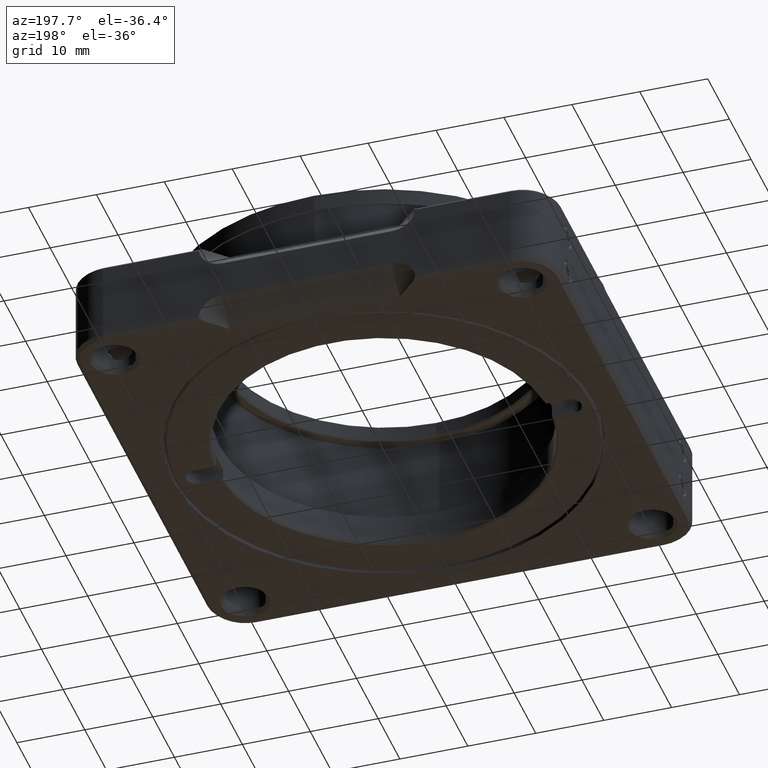
[diagram: clean part render]
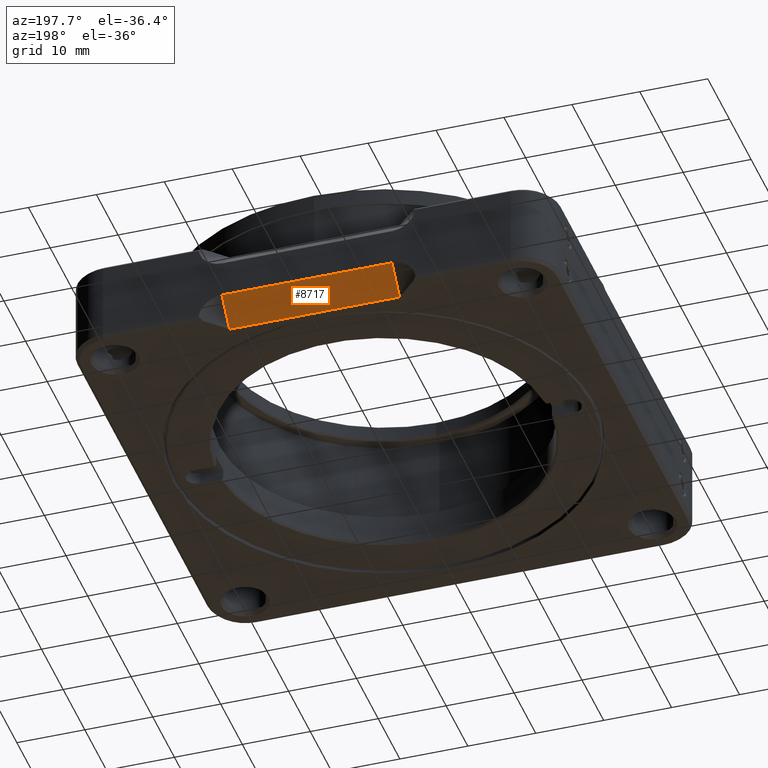
[diagram: same view with one face highlighted and labeled with its STEP entity id]
A machine part, auxiliary view. The second image highlights one B-rep face of the part: STEP entity #8717.
In plain terms, the highlighted planar face has unit normal (0, -0.7071, 0.7071).
Its self-contained STEP definition (entity closure, byte-faithful):
#47 = DIRECTION ( 'NONE',  ( -3.504670666704861723E-16, 0.7071067811865462405, 0.7071067811865489050 ) ) ;
#90 = DIRECTION ( 'NONE',  ( -1.000000000000000000, -0.000000000000000000, 0.000000000000000000 ) ) ;
#251 = DIRECTION ( 'NONE',  ( -0.000000000000000000, 0.7071067811865462405, 0.7071067811865489050 ) ) ;
#930 = ORIENTED_EDGE ( 'NONE', *, *, #1996, .F. ) ;
#1940 = CARTESIAN_POINT ( 'NONE',  ( -12.50000000000000000, 32.05000000000000426, -6.249999999999998224 ) ) ;
#1996 = EDGE_CURVE ( 'NONE', #6948, #3860, #6435, .T. ) ;
#2435 = AXIS2_PLACEMENT_3D ( 'NONE', #8226, #9312, #7215 ) ;
#3117 = LINE ( 'NONE', #6615, #9800 ) ;
#3130 = CARTESIAN_POINT ( 'NONE',  ( 12.50000000000000178, 35.54999999999999005, -2.749999999999998224 ) ) ;
#3860 = VERTEX_POINT ( 'NONE', #3130 ) ;
#4180 = ORIENTED_EDGE ( 'NONE', *, *, #10181, .T. ) ;
#5095 = VECTOR ( 'NONE', #90, 1000.000000000000000 ) ;
#5565 = EDGE_CURVE ( 'NONE', #3860, #12950, #8180, .T. ) ;
#6049 = PLANE ( 'NONE',  #2435 ) ;
#6315 = ORIENTED_EDGE ( 'NONE', *, *, #10583, .T. ) ;
#6435 = LINE ( 'NONE', #11152, #10480 ) ;
#6615 = CARTESIAN_POINT ( 'NONE',  ( -12.50000000000000178, 35.54999999999999005, -2.749999999999998224 ) ) ;
#6671 = CARTESIAN_POINT ( 'NONE',  ( 12.50000000000000178, 32.05000000000000426, -6.250000000000000000 ) ) ;
#6948 = VERTEX_POINT ( 'NONE', #6671 ) ;
#7215 = DIRECTION ( 'NONE',  ( 0.000000000000000000, -0.7071067811865462405, -0.7071067811865489050 ) ) ;
#8180 = LINE ( 'NONE', #8788, #5095 ) ;
#8226 = CARTESIAN_POINT ( 'NONE',  ( -12.50000000000000178, 35.54999999999999005, -2.749999999999998224 ) ) ;
#8717 = ADVANCED_FACE ( 'NONE', ( #11147 ), #6049, .F. ) ;
#8788 = CARTESIAN_POINT ( 'NONE',  ( -12.50000000000000178, 35.54999999999999005, -2.749999999999998224 ) ) ;
#8953 = ORIENTED_EDGE ( 'NONE', *, *, #5565, .F. ) ;
#9312 = DIRECTION ( 'NONE',  ( 0.000000000000000000, -0.7071067811865489050, 0.7071067811865462405 ) ) ;
#9596 = LINE ( 'NONE', #1940, #9768 ) ;
#9639 = DIRECTION ( 'NONE',  ( -1.000000000000000000, 0.000000000000000000, 0.000000000000000000 ) ) ;
#9768 = VECTOR ( 'NONE', #9639, 1000.000000000000000 ) ;
#9800 = VECTOR ( 'NONE', #47, 1000.000000000000000 ) ;
#10181 = EDGE_CURVE ( 'NONE', #12274, #12950, #3117, .T. ) ;
#10480 = VECTOR ( 'NONE', #251, 999.9999999999998863 ) ;
#10583 = EDGE_CURVE ( 'NONE', #6948, #12274, #9596, .T. ) ;
#11147 = FACE_OUTER_BOUND ( 'NONE', #12301, .T. ) ;
#11152 = CARTESIAN_POINT ( 'NONE',  ( 12.50000000000000178, 35.54999999999999005, -2.749999999999998224 ) ) ;
#12274 = VERTEX_POINT ( 'NONE', #13034 ) ;
#12301 = EDGE_LOOP ( 'NONE', ( #8953, #930, #6315, #4180 ) ) ;
#12950 = VERTEX_POINT ( 'NONE', #13221 ) ;
#13034 = CARTESIAN_POINT ( 'NONE',  ( -12.50000000000000000, 32.05000000000000426, -6.249999999999998224 ) ) ;
#13221 = CARTESIAN_POINT ( 'NONE',  ( -12.50000000000000178, 35.54999999999999005, -2.749999999999998224 ) ) ;